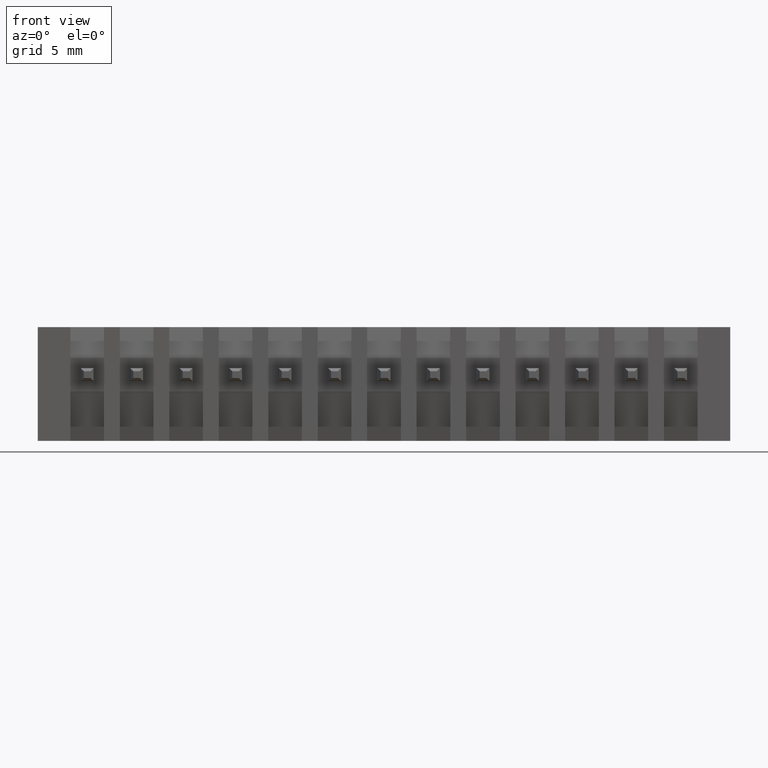
[diagram: clean part render]
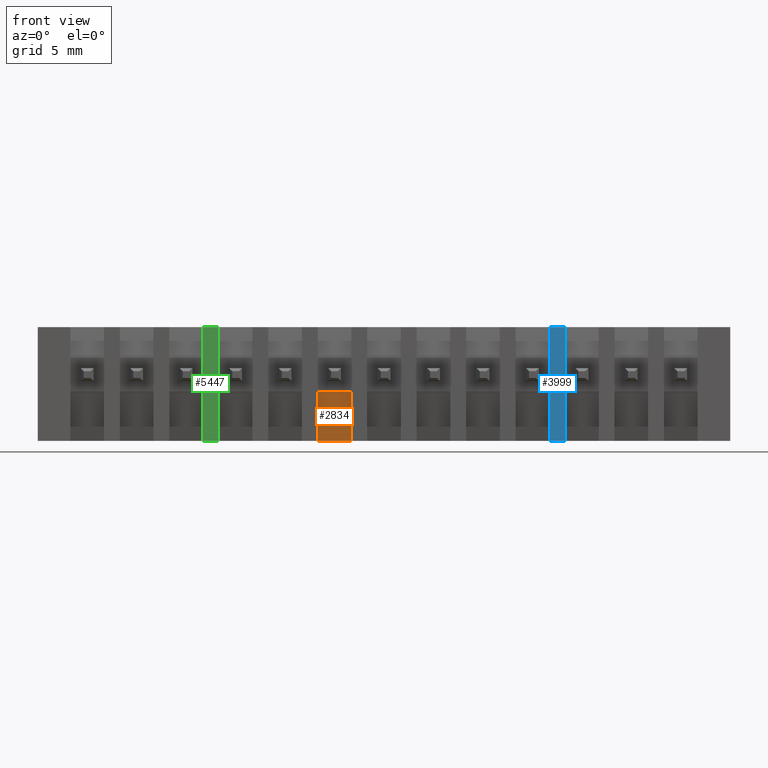
[diagram: same view with three faces highlighted in distinct colors, each labeled with its STEP entity id]
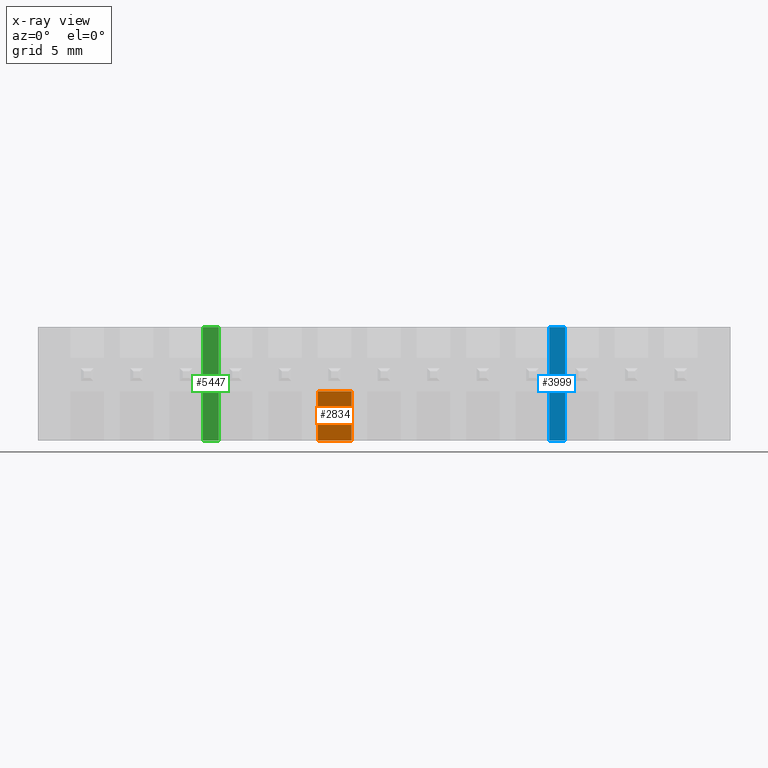
[diagram: x-ray of the same camera — body ghosted, the three highlighted faces saturated]
A machine part, front view with three faces highlighted in distinct colors.
The next image is the same camera in x-ray (body ghosted, the three faces saturated) — at least one of them is partly hidden behind the body in this view.
Their STEP definitions:

[orange] entity #2834 — the highlighted planar face has unit normal (0, 0.9524, 0.3048).
#14 = DIRECTION ( 'NONE',  ( -0.000000000000000000, -0.3047757271037839777, 0.9524241471993241115 ) ) ;
#138 = EDGE_CURVE ( 'NONE', #1602, #321, #933, .T. ) ;
#271 = CARTESIAN_POINT ( 'NONE',  ( -3.349999999999993427, 1.000000000000000000, -2.875000000000000000 ) ) ;
#321 = VERTEX_POINT ( 'NONE', #2793 ) ;
#555 = LINE ( 'NONE', #4612, #2057 ) ;
#933 = LINE ( 'NONE', #3037, #1290 ) ;
#1164 = ORIENTED_EDGE ( 'NONE', *, *, #3905, .F. ) ;
#1290 = VECTOR ( 'NONE', #6093, 1000.000000000000000 ) ;
#1428 = CARTESIAN_POINT ( 'NONE',  ( -1.649999999999993472, 1.000000000000000000, -2.875000000000000000 ) ) ;
#1522 = DIRECTION ( 'NONE',  ( 0.000000000000000000, -0.3047757271037839222, 0.9524241471993241115 ) ) ;
#1602 = VERTEX_POINT ( 'NONE', #271 ) ;
#1774 = ORIENTED_EDGE ( 'NONE', *, *, #2111, .T. ) ;
#2057 = VECTOR ( 'NONE', #14, 1000.000000000000000 ) ;
#2073 = VECTOR ( 'NONE', #2985, 1000.000000000000000 ) ;
#2091 = FACE_OUTER_BOUND ( 'NONE', #2615, .T. ) ;
#2111 = EDGE_CURVE ( 'NONE', #1602, #4455, #2384, .T. ) ;
#2317 = ORIENTED_EDGE ( 'NONE', *, *, #2807, .T. ) ;
#2384 = LINE ( 'NONE', #4437, #6151 ) ;
#2615 = EDGE_LOOP ( 'NONE', ( #2317, #1164, #5007, #1774 ) ) ;
#2793 = CARTESIAN_POINT ( 'NONE',  ( -3.349999999999993427, 0.1999999999999994837, -0.3750000000000001110 ) ) ;
#2807 = EDGE_CURVE ( 'NONE', #4455, #5772, #555, .T. ) ;
#2834 = ADVANCED_FACE ( 'NONE', ( #2091 ), #3569, .F. ) ;
#2985 = DIRECTION ( 'NONE',  ( 1.000000000000000000, -0.000000000000000000, -0.000000000000000000 ) ) ;
#3037 = CARTESIAN_POINT ( 'NONE',  ( -3.349999999999993427, 0.1999999999999994837, -0.3750000000000001110 ) ) ;
#3349 = AXIS2_PLACEMENT_3D ( 'NONE', #3676, #5637, #1522 ) ;
#3462 = LINE ( 'NONE', #5519, #2073 ) ;
#3544 = DIRECTION ( 'NONE',  ( 1.000000000000000000, -0.000000000000000000, -0.000000000000000000 ) ) ;
#3569 = PLANE ( 'NONE',  #3349 ) ;
#3676 = CARTESIAN_POINT ( 'NONE',  ( -3.349999999999993427, 0.1999999999999994837, -0.3750000000000001110 ) ) ;
#3905 = EDGE_CURVE ( 'NONE', #321, #5772, #3462, .T. ) ;
#4437 = CARTESIAN_POINT ( 'NONE',  ( -3.349999999999993427, 1.000000000000000000, -2.875000000000000000 ) ) ;
#4455 = VERTEX_POINT ( 'NONE', #1428 ) ;
#4612 = CARTESIAN_POINT ( 'NONE',  ( -1.649999999999993472, 0.1999999999999994837, -0.3750000000000001110 ) ) ;
#5007 = ORIENTED_EDGE ( 'NONE', *, *, #138, .F. ) ;
#5519 = CARTESIAN_POINT ( 'NONE',  ( -3.349999999999993427, 0.1999999999999994837, -0.3750000000000001110 ) ) ;
#5637 = DIRECTION ( 'NONE',  ( 0.000000000000000000, 0.9524241471993241115, 0.3047757271037839222 ) ) ;
#5772 = VERTEX_POINT ( 'NONE', #6064 ) ;
#6064 = CARTESIAN_POINT ( 'NONE',  ( -1.649999999999993472, 0.1999999999999994837, -0.3750000000000001110 ) ) ;
#6093 = DIRECTION ( 'NONE',  ( -0.000000000000000000, -0.3047757271037839777, 0.9524241471993241115 ) ) ;
#6151 = VECTOR ( 'NONE', #3544, 1000.000000000000000 ) ;

[blue] entity #3999 — the highlighted planar face has unit normal (0, 1, 0).
#68 = VECTOR ( 'NONE', #685, 1000.000000000000000 ) ;
#393 = CARTESIAN_POINT ( 'NONE',  ( 0.000000000000000000, 0.000000000000000000, 0.000000000000000000 ) ) ;
#427 = DIRECTION ( 'NONE',  ( 0.000000000000000000, 1.000000000000000000, 0.000000000000000000 ) ) ;
#563 = EDGE_CURVE ( 'NONE', #4971, #3453, #6399, .T. ) ;
#685 = DIRECTION ( 'NONE',  ( 1.000000000000000000, 0.000000000000000000, 0.000000000000000000 ) ) ;
#1664 = CARTESIAN_POINT ( 'NONE',  ( 9.150000000000009237, 0.000000000000000000, -2.875000000000000000 ) ) ;
#1703 = ORIENTED_EDGE ( 'NONE', *, *, #3457, .T. ) ;
#1877 = LINE ( 'NONE', #6080, #6277 ) ;
#2038 = CARTESIAN_POINT ( 'NONE',  ( 8.350000000000010303, 0.000000000000000000, -2.875000000000000000 ) ) ;
#2305 = CARTESIAN_POINT ( 'NONE',  ( -17.49999999999999645, 0.000000000000000000, 2.875000000000000000 ) ) ;
#2335 = CARTESIAN_POINT ( 'NONE',  ( 9.150000000000009237, 0.000000000000000000, -2.875000000000000000 ) ) ;
#2613 = VECTOR ( 'NONE', #2978, 1000.000000000000000 ) ;
#2809 = ORIENTED_EDGE ( 'NONE', *, *, #3026, .F. ) ;
#2978 = DIRECTION ( 'NONE',  ( -0.000000000000000000, -0.000000000000000000, -1.000000000000000000 ) ) ;
#3011 = FACE_OUTER_BOUND ( 'NONE', #6123, .T. ) ;
#3026 = EDGE_CURVE ( 'NONE', #4983, #4025, #5288, .T. ) ;
#3426 = ORIENTED_EDGE ( 'NONE', *, *, #4353, .F. ) ;
#3453 = VERTEX_POINT ( 'NONE', #4445 ) ;
#3457 = EDGE_CURVE ( 'NONE', #4971, #4025, #1877, .T. ) ;
#3566 = DIRECTION ( 'NONE',  ( -0.000000000000000000, -0.000000000000000000, -1.000000000000000000 ) ) ;
#3713 = ORIENTED_EDGE ( 'NONE', *, *, #563, .F. ) ;
#3716 = DIRECTION ( 'NONE',  ( -1.000000000000000000, -0.000000000000000000, -0.000000000000000000 ) ) ;
#3999 = ADVANCED_FACE ( 'NONE', ( #3011 ), #5068, .F. ) ;
#4025 = VERTEX_POINT ( 'NONE', #2038 ) ;
#4353 = EDGE_CURVE ( 'NONE', #3453, #4983, #5547, .T. ) ;
#4445 = CARTESIAN_POINT ( 'NONE',  ( 9.150000000000009237, 0.000000000000000000, 2.875000000000000000 ) ) ;
#4971 = VERTEX_POINT ( 'NONE', #6706 ) ;
#4983 = VERTEX_POINT ( 'NONE', #1664 ) ;
#5068 = PLANE ( 'NONE',  #6703 ) ;
#5288 = LINE ( 'NONE', #6255, #5734 ) ;
#5547 = LINE ( 'NONE', #2335, #2613 ) ;
#5734 = VECTOR ( 'NONE', #3716, 1000.000000000000000 ) ;
#5764 = DIRECTION ( 'NONE',  ( 0.000000000000000000, -0.000000000000000000, 1.000000000000000000 ) ) ;
#6080 = CARTESIAN_POINT ( 'NONE',  ( 8.350000000000008527, 0.000000000000000000, -2.875000000000000000 ) ) ;
#6123 = EDGE_LOOP ( 'NONE', ( #2809, #3426, #3713, #1703 ) ) ;
#6255 = CARTESIAN_POINT ( 'NONE',  ( -17.49999999999999645, 0.000000000000000000, -2.875000000000000000 ) ) ;
#6277 = VECTOR ( 'NONE', #3566, 1000.000000000000000 ) ;
#6399 = LINE ( 'NONE', #2305, #68 ) ;
#6703 = AXIS2_PLACEMENT_3D ( 'NONE', #393, #427, #5764 ) ;
#6706 = CARTESIAN_POINT ( 'NONE',  ( 8.350000000000008527, 0.000000000000000000, 2.875000000000000000 ) ) ;

[green] entity #5447 — the highlighted planar face has unit normal (0, 1, 0).
#145 = CARTESIAN_POINT ( 'NONE',  ( -9.149999999999993250, 0.000000000000000000, -2.875000000000000000 ) ) ;
#430 = CARTESIAN_POINT ( 'NONE',  ( 0.000000000000000000, 0.000000000000000000, 0.000000000000000000 ) ) ;
#815 = EDGE_CURVE ( 'NONE', #1445, #2628, #1719, .T. ) ;
#856 = EDGE_LOOP ( 'NONE', ( #5928, #5218, #868, #2306 ) ) ;
#868 = ORIENTED_EDGE ( 'NONE', *, *, #5635, .F. ) ;
#1076 = LINE ( 'NONE', #4963, #6324 ) ;
#1149 = DIRECTION ( 'NONE',  ( -1.000000000000000000, -0.000000000000000000, -0.000000000000000000 ) ) ;
#1260 = LINE ( 'NONE', #3796, #2348 ) ;
#1445 = VERTEX_POINT ( 'NONE', #1574 ) ;
#1509 = FACE_OUTER_BOUND ( 'NONE', #856, .T. ) ;
#1574 = CARTESIAN_POINT ( 'NONE',  ( -9.149999999999993250, 0.000000000000000000, 2.875000000000000000 ) ) ;
#1651 = CARTESIAN_POINT ( 'NONE',  ( -17.49999999999999645, 0.000000000000000000, -2.875000000000000000 ) ) ;
#1719 = LINE ( 'NONE', #145, #3049 ) ;
#1988 = CARTESIAN_POINT ( 'NONE',  ( -8.349999999999990763, 0.000000000000000000, 2.875000000000000000 ) ) ;
#2079 = PLANE ( 'NONE',  #3321 ) ;
#2271 = DIRECTION ( 'NONE',  ( -0.000000000000000000, -0.000000000000000000, -1.000000000000000000 ) ) ;
#2306 = ORIENTED_EDGE ( 'NONE', *, *, #815, .T. ) ;
#2348 = VECTOR ( 'NONE', #4333, 1000.000000000000000 ) ;
#2628 = VERTEX_POINT ( 'NONE', #6078 ) ;
#3049 = VECTOR ( 'NONE', #2271, 1000.000000000000000 ) ;
#3066 = DIRECTION ( 'NONE',  ( -0.000000000000000000, -0.000000000000000000, -1.000000000000000000 ) ) ;
#3321 = AXIS2_PLACEMENT_3D ( 'NONE', #430, #6733, #4600 ) ;
#3796 = CARTESIAN_POINT ( 'NONE',  ( -17.49999999999999645, 0.000000000000000000, 2.875000000000000000 ) ) ;
#4333 = DIRECTION ( 'NONE',  ( 1.000000000000000000, 0.000000000000000000, 0.000000000000000000 ) ) ;
#4600 = DIRECTION ( 'NONE',  ( 0.000000000000000000, -0.000000000000000000, 1.000000000000000000 ) ) ;
#4675 = EDGE_CURVE ( 'NONE', #6189, #2628, #4789, .T. ) ;
#4789 = LINE ( 'NONE', #1651, #5133 ) ;
#4963 = CARTESIAN_POINT ( 'NONE',  ( -8.349999999999990763, 0.000000000000000000, -2.875000000000000000 ) ) ;
#5133 = VECTOR ( 'NONE', #1149, 1000.000000000000000 ) ;
#5218 = ORIENTED_EDGE ( 'NONE', *, *, #6416, .F. ) ;
#5447 = ADVANCED_FACE ( 'NONE', ( #1509 ), #2079, .F. ) ;
#5635 = EDGE_CURVE ( 'NONE', #1445, #6468, #1260, .T. ) ;
#5856 = CARTESIAN_POINT ( 'NONE',  ( -8.349999999999990763, 0.000000000000000000, -2.875000000000000000 ) ) ;
#5928 = ORIENTED_EDGE ( 'NONE', *, *, #4675, .F. ) ;
#6078 = CARTESIAN_POINT ( 'NONE',  ( -9.149999999999993250, 0.000000000000000000, -2.875000000000000000 ) ) ;
#6189 = VERTEX_POINT ( 'NONE', #5856 ) ;
#6324 = VECTOR ( 'NONE', #3066, 1000.000000000000000 ) ;
#6416 = EDGE_CURVE ( 'NONE', #6468, #6189, #1076, .T. ) ;
#6468 = VERTEX_POINT ( 'NONE', #1988 ) ;
#6733 = DIRECTION ( 'NONE',  ( 0.000000000000000000, 1.000000000000000000, 0.000000000000000000 ) ) ;